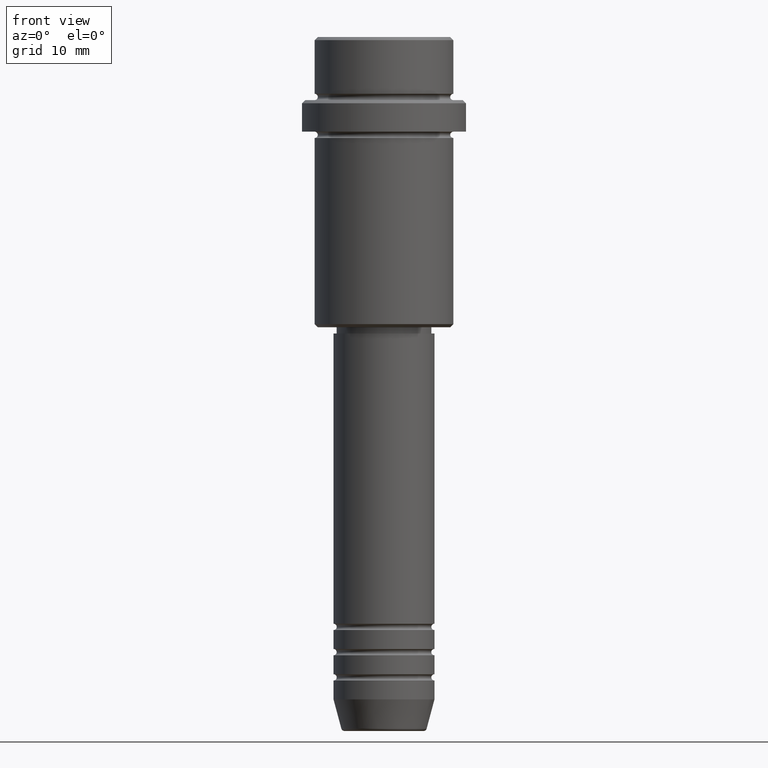
[diagram: clean part render]
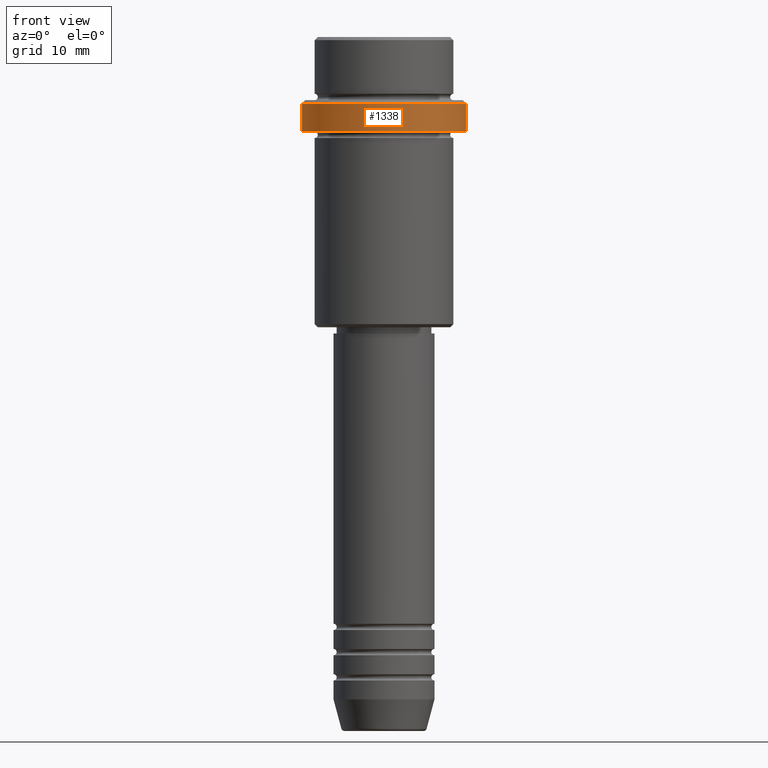
[diagram: same view with one face highlighted and labeled with its STEP entity id]
A machine part, front view. The second image highlights one B-rep face of the part: STEP entity #1338.
In plain terms, the highlighted cylindrical surface (partial cylindrical patch) has radius 13 mm, axis along (-0, -0, 1).
Its self-contained STEP definition (entity closure, byte-faithful):
#5 = CARTESIAN_POINT ( 'NONE',  ( 13.00000000000000000, 0.000000000000000000, -10.50000000000000711 ) ) ;
#14 = AXIS2_PLACEMENT_3D ( 'NONE', #49, #279, #845 ) ;
#49 = CARTESIAN_POINT ( 'NONE',  ( 0.000000000000000000, 0.000000000000000000, -10.50000000000000711 ) ) ;
#58 = CIRCLE ( 'NONE', #1168, 13.00000000000000000 ) ;
#100 = CARTESIAN_POINT ( 'NONE',  ( -13.00000000000000000, 1.592040838891559095E-15, 0.000000000000000000 ) ) ;
#102 = VECTOR ( 'NONE', #532, 1000.000000000000000 ) ;
#261 = DIRECTION ( 'NONE',  ( -0.000000000000000000, -0.000000000000000000, 1.000000000000000000 ) ) ;
#279 = DIRECTION ( 'NONE',  ( 0.000000000000000000, 0.000000000000000000, -1.000000000000000000 ) ) ;
#308 = DIRECTION ( 'NONE',  ( 1.000000000000000000, 0.000000000000000000, 0.000000000000000000 ) ) ;
#332 = LINE ( 'NONE', #1320, #1239 ) ;
#350 = CARTESIAN_POINT ( 'NONE',  ( 13.00000000000000000, 0.000000000000000000, -15.00000000000000178 ) ) ;
#358 = VERTEX_POINT ( 'NONE', #987 ) ;
#468 = EDGE_CURVE ( 'NONE', #1302, #577, #332, .T. ) ;
#496 = ORIENTED_EDGE ( 'NONE', *, *, #753, .F. ) ;
#532 = DIRECTION ( 'NONE',  ( -0.000000000000000000, -0.000000000000000000, 1.000000000000000000 ) ) ;
#577 = VERTEX_POINT ( 'NONE', #5 ) ;
#580 = DIRECTION ( 'NONE',  ( 1.000000000000000000, 0.000000000000000000, 0.000000000000000000 ) ) ;
#588 = EDGE_CURVE ( 'NONE', #358, #1302, #58, .T. ) ;
#625 = CIRCLE ( 'NONE', #14, 13.00000000000000000 ) ;
#700 = ORIENTED_EDGE ( 'NONE', *, *, #588, .T. ) ;
#721 = VERTEX_POINT ( 'NONE', #1064 ) ;
#741 = DIRECTION ( 'NONE',  ( -0.000000000000000000, -0.000000000000000000, 1.000000000000000000 ) ) ;
#742 = ORIENTED_EDGE ( 'NONE', *, *, #1121, .T. ) ;
#753 = EDGE_CURVE ( 'NONE', #358, #721, #1091, .T. ) ;
#845 = DIRECTION ( 'NONE',  ( 1.000000000000000000, 0.000000000000000000, 0.000000000000000000 ) ) ;
#875 = CARTESIAN_POINT ( 'NONE',  ( 0.000000000000000000, 0.000000000000000000, -15.00000000000000178 ) ) ;
#905 = CYLINDRICAL_SURFACE ( 'NONE', #979, 13.00000000000000000 ) ;
#979 = AXIS2_PLACEMENT_3D ( 'NONE', #1342, #261, #580 ) ;
#987 = CARTESIAN_POINT ( 'NONE',  ( -13.00000000000000000, 1.592040838891559095E-15, -15.00000000000000178 ) ) ;
#1064 = CARTESIAN_POINT ( 'NONE',  ( -13.00000000000000000, 1.592040838891559095E-15, -10.50000000000000711 ) ) ;
#1091 = LINE ( 'NONE', #100, #102 ) ;
#1121 = EDGE_CURVE ( 'NONE', #577, #721, #625, .T. ) ;
#1168 = AXIS2_PLACEMENT_3D ( 'NONE', #875, #741, #308 ) ;
#1194 = ORIENTED_EDGE ( 'NONE', *, *, #468, .T. ) ;
#1212 = DIRECTION ( 'NONE',  ( -0.000000000000000000, -0.000000000000000000, 1.000000000000000000 ) ) ;
#1237 = FACE_OUTER_BOUND ( 'NONE', #1272, .T. ) ;
#1239 = VECTOR ( 'NONE', #1212, 1000.000000000000000 ) ;
#1272 = EDGE_LOOP ( 'NONE', ( #496, #700, #1194, #742 ) ) ;
#1302 = VERTEX_POINT ( 'NONE', #350 ) ;
#1320 = CARTESIAN_POINT ( 'NONE',  ( 13.00000000000000000, 0.000000000000000000, 0.000000000000000000 ) ) ;
#1338 = ADVANCED_FACE ( 'NONE', ( #1237 ), #905, .T. ) ;
#1342 = CARTESIAN_POINT ( 'NONE',  ( 0.000000000000000000, 0.000000000000000000, 0.000000000000000000 ) ) ;